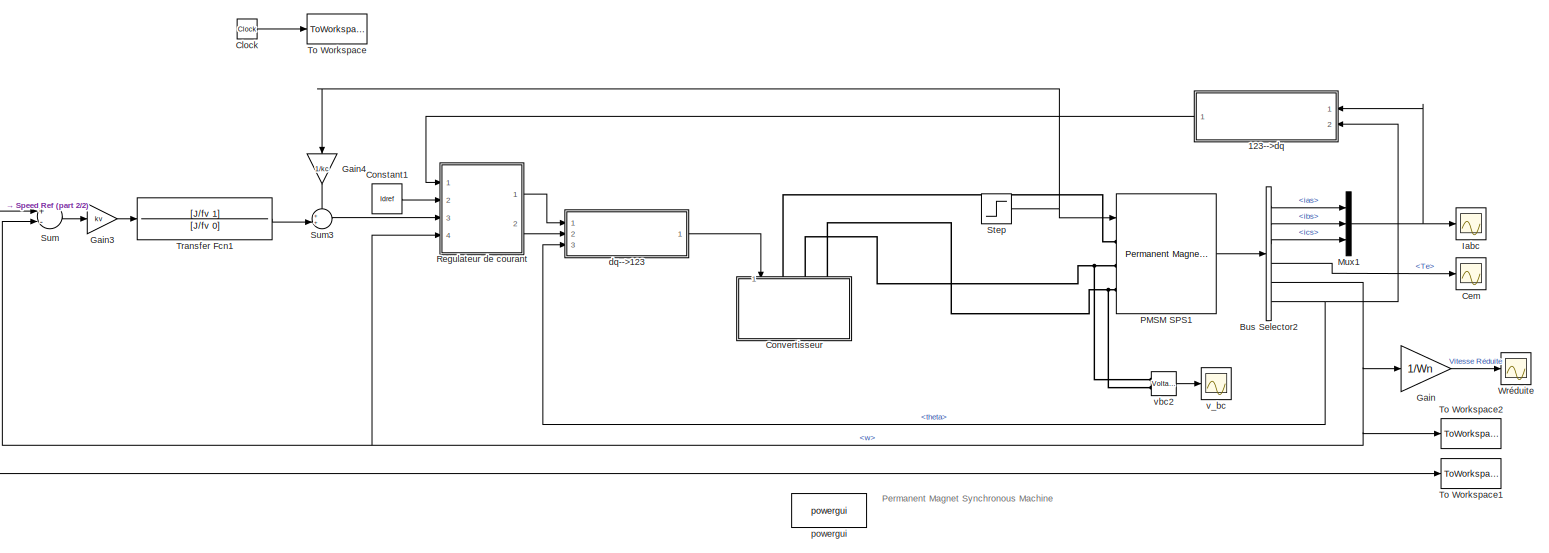
[diagram: root canvas - part 1/2, most of the canvas]
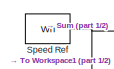
[diagram: root canvas - part 2/2, middle left region]
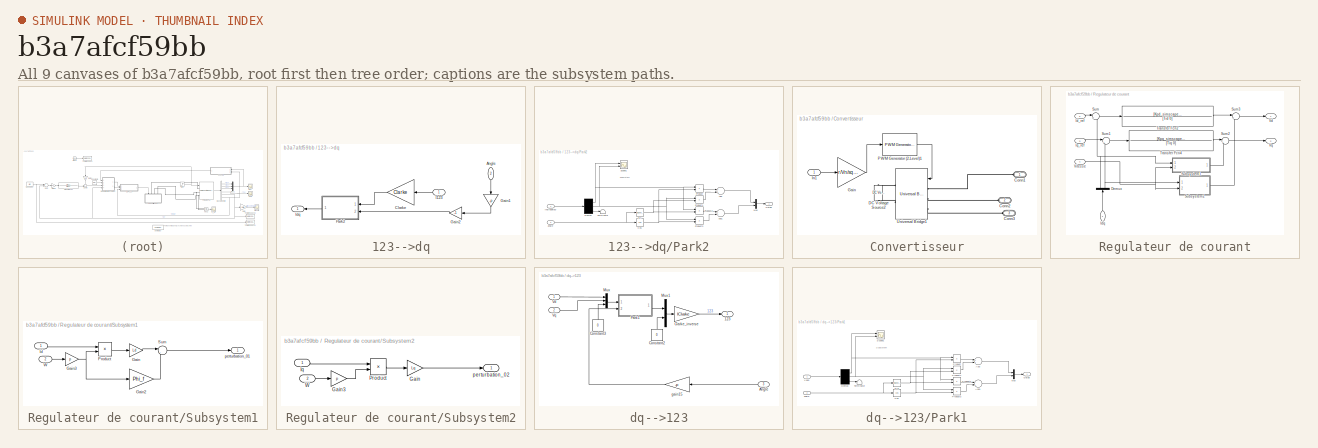
[diagram: thumbnail index - all 9 canvases of the model, root first then tree order]
MODEL slx_b3a7afcf59bb
KIND model
CONFIG AbsTol = auto
CONFIG EnableMultiTasking = off
CONFIG FixedStep = Ts
CONFIG MaxStep = auto
CONFIG MinStep = auto
CONFIG RelTol = 1e-4
CONFIG SampleTimeConstraint = Unconstrained
CONFIG Solver = ode4
CONFIG SolverName = ode4
CONFIG StartTime = 0.0
CONFIG StopTime = Tsim_all
BLOCK [SubSystem] 123-->dq
  Ports = [2, 1]
  RequestExecContextInheritance = off
BLOCK [Inport] 123-->dq/Angle
  IconDisplay = Port number
  Port = 2
BLOCK [Gain] 123-->dq/Clarke
  Gain = Clarke
  Multiplication = Matrix(K*u)
  OutDataTypeStr = Inherit: Inherit via internal rule
  ParamDataTypeStr = Inherit: Inherit via internal rule
  SaturateOnIntegerOverflow = off
BLOCK [Gain] 123-->dq/Gain1
  Gain = -p
  OutDataTypeStr = Inherit: Inherit via internal rule
  ParamDataTypeStr = Inherit: Inherit via internal rule
  SaturateOnIntegerOverflow = off
BLOCK [Gain] 123-->dq/Gain2
  Gain = -1
  OutDataTypeStr = Inherit: Inherit via internal rule
  ParamDataTypeStr = Inherit: Inherit via internal rule
  SaturateOnIntegerOverflow = off
BLOCK [Inport] 123-->dq/I123
  IconDisplay = Port number
BLOCK [Outport] 123-->dq/Idq
  IconDisplay = Port number
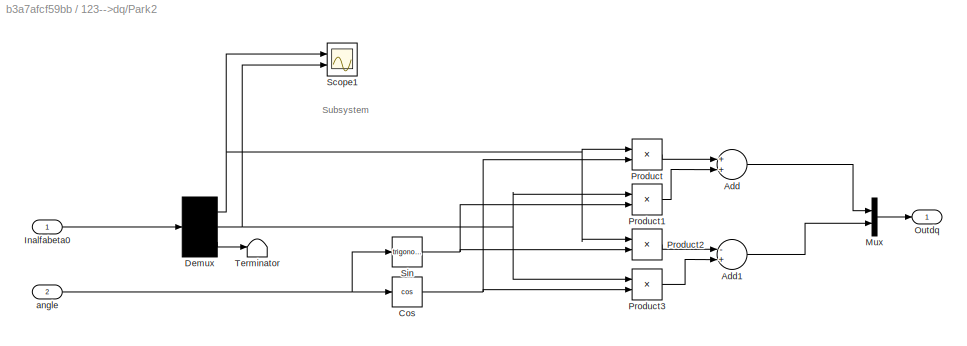
BLOCK [SubSystem] 123-->dq/Park2
  Ports = [2, 1]
  RequestExecContextInheritance = off
BLOCK [Sum] 123-->dq/Park2/Add
  InputSameDT = off
  OutDataTypeStr = Inherit: Inherit via internal rule
  Ports = [2, 1]
  SaturateOnIntegerOverflow = off
BLOCK [Sum] 123-->dq/Park2/Add1
  InputSameDT = off
  Inputs = -+
  OutDataTypeStr = Inherit: Inherit via internal rule
  Ports = [2, 1]
  SaturateOnIntegerOverflow = off
BLOCK [Trigonometry] 123-->dq/Park2/Cos
  Operator = cos
  Ports = [1, 1]
BLOCK [Demux] 123-->dq/Park2/Demux
  Outputs = 3
  Ports = [1, 3]
BLOCK [Inport] 123-->dq/Park2/Inalfabeta0
  IconDisplay = Port number
BLOCK [Mux] 123-->dq/Park2/Mux
  DisplayOption = bar
  Inputs = 2
  Ports = [2, 1]
BLOCK [Outport] 123-->dq/Park2/Outdq
  IconDisplay = Port number
BLOCK [Product] 123-->dq/Park2/Product
  InputSameDT = off
  OutDataTypeStr = Inherit: Inherit via internal rule
  Ports = [2, 1]
  RndMeth = Floor
  SaturateOnIntegerOverflow = off
BLOCK [Product] 123-->dq/Park2/Product1
  InputSameDT = off
  OutDataTypeStr = Inherit: Inherit via internal rule
  Ports = [2, 1]
  RndMeth = Floor
  SaturateOnIntegerOverflow = off
BLOCK [Product] 123-->dq/Park2/Product2
  InputSameDT = off
  OutDataTypeStr = Inherit: Inherit via internal rule
  Ports = [2, 1]
  RndMeth = Floor
  SaturateOnIntegerOverflow = off
BLOCK [Product] 123-->dq/Park2/Product3
  InputSameDT = off
  OutDataTypeStr = Inherit: Inherit via internal rule
  Ports = [2, 1]
  RndMeth = Floor
  SaturateOnIntegerOverflow = off
BLOCK [Scope] 123-->dq/Park2/Scope1
  Floating = off
  NumInputPorts = 2
  Ports = [2]
  ScopeSpecificationString = Simulink.scopes.TimeScopeBlockCfg('CurrentConfiguration', extmgr.ConfigurationSet(extmgr.Configuration('Core','General UI',true),extmgr.Configuration('Core','Source UI',true),extmgr.Configuration('Sources','WiredSimulink',true,'DataLoggingVariableName','ScopeData1'),extmgr.Configuration('Visuals','Time Domain',true,'SerializedDisplays',{struct('MinYLimReal','-1.53093','MaxYLimReal','1.53093','YLab...<+1376ch>
BLOCK [Trigonometry] 123-->dq/Park2/Sin
  Ports = [1, 1]
BLOCK [Terminator] 123-->dq/Park2/Terminator
BLOCK [Inport] 123-->dq/Park2/angle
  IconDisplay = Port number
  Port = 2
BLOCK [BusSelector] Bus Selector2
  OutputAsBus = off
  OutputSignals = ias,ibs,ics,Te,w,theta
  Ports = [1, 6]
BLOCK [Scope] Cem
  Commented = on
  Floating = off
  NumInputPorts = 1
  Ports = [1]
  ScopeSpecificationString = Simulink.scopes.TimeScopeBlockCfg('CurrentConfiguration', extmgr.ConfigurationSet(extmgr.Configuration('Core','General UI',true),extmgr.Configuration('Core','Source UI',true),extmgr.Configuration('Sources','WiredSimulink',true,'DataLoggingVariableName','ScopeData2'),extmgr.Configuration('Visuals','Time Domain',true,'SerializedDisplays',{struct('MinYLimReal','-19.64054','MaxYLimReal','176.76489','Y...<+1402ch>
BLOCK [Clock] Clock
  Commented = on
BLOCK [Constant] Constant1
  Value = Idref
BLOCK [SubSystem] Convertisseur
  Ports = [1, 0, 0, 0, 0, 3]
  RequestExecContextInheritance = off
BLOCK [PMIOPort] Convertisseur/Conn1
  Side = Left
BLOCK [PMIOPort] Convertisseur/Conn2
  Port = 2
  Side = Left
BLOCK [PMIOPort] Convertisseur/Conn3
  Port = 3
  Side = Left
BLOCK [Reference] Convertisseur/DC Voltage Source2  REF=powerlib/Electrical
Sources/DC Voltage Source
  Ports = [0, 0, 0, 0, 0, 1, 1]
  SourceBlock = powerlib/Electrical\nSources/DC Voltage Source
  SourceProductBaseCode = PS
  SourceProductName = Simscape Electrical
  SourceType = DC Voltage Source
BLOCK [Gain] Convertisseur/Gain
  Gain = r/Vn/sqrt(2)
  OutDataTypeStr = Inherit: Inherit via internal rule
  ParamDataTypeStr = Inherit: Inherit via internal rule
  SaturateOnIntegerOverflow = off
BLOCK [Inport] Convertisseur/In1
  IconDisplay = Port number
BLOCK [Reference] Convertisseur/PWM Generator (2-Level)1  REF=powerlib_meascontrol/Pulse & Signal
Generators/PWM Generator
(2-Level)
  Ports = [1, 1]
  SourceBlock = powerlib_meascontrol/Pulse & Signal\nGenerators/PWM Generator\n(2-Level)
  SourceProductBaseCode = PS
  SourceProductName = Simscape Electrical
  SourceType = PWM Generator (2-Level)
BLOCK [Reference] Convertisseur/Universal Bridge1  REF=powerlib/Power
Electronics/Universal Bridge
  Ports = [1, 0, 0, 0, 0, 3, 2]
  SourceBlock = powerlib/Power\nElectronics/Universal Bridge
  SourceProductBaseCode = PS
  SourceProductName = Simscape Electrical
  SourceType = Universal Bridge
BLOCK [Gain] Gain
  Gain = 1/Wn
  OutDataTypeStr = Inherit: Inherit via internal rule
  ParamDataTypeStr = Inherit: Inherit via internal rule
  SaturateOnIntegerOverflow = off
BLOCK [Gain] Gain3
  Gain = kv
  OutDataTypeStr = Inherit: Inherit via internal rule
  ParamDataTypeStr = Inherit: Inherit via internal rule
  SaturateOnIntegerOverflow = off
BLOCK [Gain] Gain4
  Gain = 1/kc
  OutDataTypeStr = Inherit: Inherit via internal rule
  ParamDataTypeStr = Inherit: Inherit via internal rule
  SaturateOnIntegerOverflow = off
BLOCK [Scope] Iabc
  Commented = on
  Floating = off
  NumInputPorts = 1
  Ports = [1]
  ScopeSpecificationString = Simulink.scopes.TimeScopeBlockCfg('CurrentConfiguration', extmgr.ConfigurationSet(extmgr.Configuration('Core','General UI',true),extmgr.Configuration('Core','Source UI',true),extmgr.Configuration('Sources','WiredSimulink',true,'DataLoggingVariableName','ScopeData3'),extmgr.Configuration('Visuals','Time Domain',true,'SerializedDisplays',{struct('MinYLimReal','-1.51637','MaxYLimReal','1.54017','YLab...<+1407ch>
BLOCK [Mux] Mux1
  DisplayOption = bar
  Inputs = 3
  Ports = [3, 1]
BLOCK [Reference] PMSM SPS1  REF=powerlib/Machines/Permanent Magnet
Synchronous Machine
  Ports = [1, 1, 0, 0, 0, 3]
  SourceBlock = powerlib/Machines/Permanent Magnet\nSynchronous Machine
  SourceProductBaseCode = PS
  SourceProductName = Simscape Electrical
  SourceType = Permanent Magnet Synchronous Machine
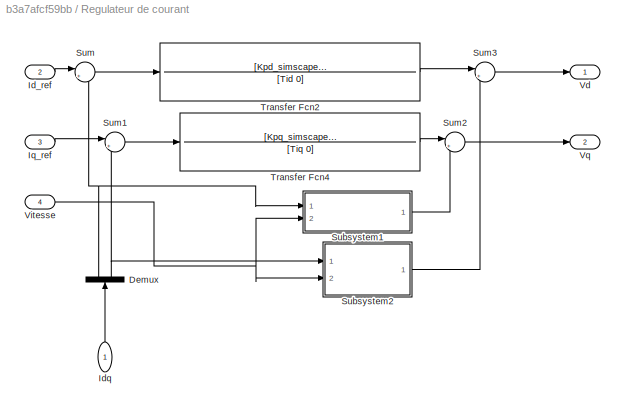
BLOCK [SubSystem] Regulateur de courant
  Ports = [4, 2]
  RequestExecContextInheritance = off
BLOCK [Demux] Regulateur de courant/Demux
  DisplayOption = bar
  Outputs = 2
  Ports = [1, 2]
BLOCK [Inport] Regulateur de courant/Id_ref
  IconDisplay = Port number
  Port = 2
BLOCK [Inport] Regulateur de courant/Idq
  IconDisplay = Port number
BLOCK [Inport] Regulateur de courant/Iq_ref
  IconDisplay = Port number
  Port = 3
BLOCK [SubSystem] Regulateur de courant/Subsystem1
  Ports = [2, 1]
  RequestExecContextInheritance = off
BLOCK [Gain] Regulateur de courant/Subsystem1/Gain
  Gain = Ld
  OutDataTypeStr = Inherit: Inherit via internal rule
  ParamDataTypeStr = Inherit: Inherit via internal rule
  SaturateOnIntegerOverflow = off
BLOCK [Gain] Regulateur de courant/Subsystem1/Gain2
  Gain = Phi_f
  OutDataTypeStr = Inherit: Inherit via internal rule
  ParamDataTypeStr = Inherit: Inherit via internal rule
  SaturateOnIntegerOverflow = off
BLOCK [Gain] Regulateur de courant/Subsystem1/Gain3
  Gain = p
  OutDataTypeStr = Inherit: Inherit via internal rule
  ParamDataTypeStr = Inherit: Inherit via internal rule
  SaturateOnIntegerOverflow = off
BLOCK [Inport] Regulateur de courant/Subsystem1/Id
  IconDisplay = Port number
BLOCK [Product] Regulateur de courant/Subsystem1/Product
  InputSameDT = off
  OutDataTypeStr = Inherit: Inherit via internal rule
  Ports = [2, 1]
  RndMeth = Floor
  SaturateOnIntegerOverflow = off
BLOCK [Sum] Regulateur de courant/Subsystem1/Sum
  IconShape = round
  InputSameDT = off
  Inputs = |--
  OutDataTypeStr = Inherit: Inherit via internal rule
  Ports = [2, 1]
  SaturateOnIntegerOverflow = off
BLOCK [Inport] Regulateur de courant/Subsystem1/W
  IconDisplay = Port number
  Port = 2
BLOCK [Outport] Regulateur de courant/Subsystem1/perturbation_01
  IconDisplay = Port number
BLOCK [SubSystem] Regulateur de courant/Subsystem2
  Ports = [2, 1]
  RequestExecContextInheritance = off
BLOCK [Gain] Regulateur de courant/Subsystem2/Gain
  Gain = Lq
  OutDataTypeStr = Inherit: Inherit via internal rule
  ParamDataTypeStr = Inherit: Inherit via internal rule
  SaturateOnIntegerOverflow = off
BLOCK [Gain] Regulateur de courant/Subsystem2/Gain3
  Gain = p
  OutDataTypeStr = Inherit: Inherit via internal rule
  ParamDataTypeStr = Inherit: Inherit via internal rule
  SaturateOnIntegerOverflow = off
BLOCK [Inport] Regulateur de courant/Subsystem2/Iq
  IconDisplay = Port number
BLOCK [Product] Regulateur de courant/Subsystem2/Product
  InputSameDT = off
  OutDataTypeStr = Inherit: Inherit via internal rule
  Ports = [2, 1]
  RndMeth = Floor
  SaturateOnIntegerOverflow = off
BLOCK [Inport] Regulateur de courant/Subsystem2/W
  IconDisplay = Port number
  Port = 2
BLOCK [Outport] Regulateur de courant/Subsystem2/perturbation_02
  IconDisplay = Port number
BLOCK [Sum] Regulateur de courant/Sum
  IconShape = round
  InputSameDT = off
  Inputs = |+-
  OutDataTypeStr = Inherit: Inherit via internal rule
  Ports = [2, 1]
  SaturateOnIntegerOverflow = off
BLOCK [Sum] Regulateur de courant/Sum1
  IconShape = round
  InputSameDT = off
  Inputs = |+-
  OutDataTypeStr = Inherit: Inherit via internal rule
  Ports = [2, 1]
  SaturateOnIntegerOverflow = off
BLOCK [Sum] Regulateur de courant/Sum2
  IconShape = round
  InputSameDT = off
  Inputs = |+-
  OutDataTypeStr = Inherit: Inherit via internal rule
  Ports = [2, 1]
  SaturateOnIntegerOverflow = off
BLOCK [Sum] Regulateur de courant/Sum3
  IconShape = round
  InputSameDT = off
  Inputs = |+-
  OutDataTypeStr = Inherit: Inherit via internal rule
  Ports = [2, 1]
  SaturateOnIntegerOverflow = off
BLOCK [TransferFcn] Regulateur de courant/Transfer Fcn2
  Denominator = [Tid 0]
  Numerator = [Kpd_simscape*Tid Kpd_simscape]
BLOCK [TransferFcn] Regulateur de courant/Transfer Fcn4
  Denominator = [Tiq 0]
  Numerator = [Kpq_simscape*Tiq Kpq_simscape]
BLOCK [Outport] Regulateur de courant/Vd
  IconDisplay = Port number
BLOCK [Inport] Regulateur de courant/Vitesse
  IconDisplay = Port number
  Port = 4
BLOCK [Outport] Regulateur de courant/Vq
  IconDisplay = Port number
  Port = 2
BLOCK [Constant] Speed Ref
  Value = Wn
BLOCK [Step] Step
  After = Cn
  SampleTime = 0
  Time = delay_torque
BLOCK [Sum] Sum
  Inputs = +-
  Ports = [2, 1]
BLOCK [Sum] Sum3
  IconShape = round
  InputSameDT = off
  Inputs = ++|
  OutDataTypeStr = Inherit: Inherit via internal rule
  Ports = [2, 1]
  SaturateOnIntegerOverflow = off
BLOCK [ToWorkspace] To Workspace
  Commented = on
  FixptAsFi = on
  MaxDataPoints = inf
  Ports = [1]
  SampleTime = -1
  Save2DSignal = 3-D array (concatenate along third dimension)
  VariableName = t
BLOCK [ToWorkspace] To Workspace1
  Commented = on
  FixptAsFi = on
  MaxDataPoints = inf
  Ports = [1]
  SampleTime = -1
  Save2DSignal = 3-D array (concatenate along third dimension)
  VariableName = Vitesse_ref
BLOCK [ToWorkspace] To Workspace2
  Commented = on
  FixptAsFi = on
  MaxDataPoints = inf
  Ports = [1]
  SampleTime = -1
  Save2DSignal = 3-D array (concatenate along third dimension)
  VariableName = Vitesse
BLOCK [TransferFcn] Transfer Fcn1
  Denominator = [J/fv 0]
  Numerator = [J/fv 1]
BLOCK [Scope] Wréduite
  Floating = off
  NumInputPorts = 1
  Ports = [1]
  ScopeSpecificationString = Simulink.scopes.TimeScopeBlockCfg('CurrentConfiguration', extmgr.ConfigurationSet(extmgr.Configuration('Core','General UI',true),extmgr.Configuration('Core','Source UI',true),extmgr.Configuration('Sources','WiredSimulink',true,'DataLoggingVariableName','ScopeData1'),extmgr.Configuration('Visuals','Time Domain',true,'SerializedDisplays',{struct('MinYLimReal','-0.1206','MaxYLimReal','1.08542','YLabe...<+1432ch>
BLOCK [SubSystem] dq-->123
  Ports = [3, 1]
  RequestExecContextInheritance = off
BLOCK [Outport] dq-->123/123
  IconDisplay = Port number
BLOCK [Inport] dq-->123/Angle
  IconDisplay = Port number
  Port = 3
BLOCK [Gain] dq-->123/Clarke_inverse
  Gain = IClarke
  Multiplication = Matrix(K*u)
  OutDataTypeStr = Inherit: Inherit via internal rule
  ParamDataTypeStr = Inherit: Inherit via internal rule
  SaturateOnIntegerOverflow = off
BLOCK [Constant] dq-->123/Constant2
  Value = 0
BLOCK [Constant] dq-->123/Constant3
  Value = 0
BLOCK [Mux] dq-->123/Mux
  DisplayOption = bar
  Inputs = 3
  Ports = [3, 1]
BLOCK [Mux] dq-->123/Mux1
  DisplayOption = bar
  Inputs = 2
  Ports = [2, 1]
BLOCK [SubSystem] dq-->123/Park1
  Ports = [2, 1]
  RequestExecContextInheritance = off
BLOCK [Sum] dq-->123/Park1/Add
  InputSameDT = off
  OutDataTypeStr = Inherit: Inherit via internal rule
  Ports = [2, 1]
  SaturateOnIntegerOverflow = off
BLOCK [Sum] dq-->123/Park1/Add1
  InputSameDT = off
  Inputs = -+
  OutDataTypeStr = Inherit: Inherit via internal rule
  Ports = [2, 1]
  SaturateOnIntegerOverflow = off
BLOCK [Trigonometry] dq-->123/Park1/Cos
  Operator = cos
  Ports = [1, 1]
BLOCK [Demux] dq-->123/Park1/Demux
  Outputs = 3
  Ports = [1, 3]
BLOCK [Mux] dq-->123/Park1/Mux
  DisplayOption = bar
  Inputs = 2
  Ports = [2, 1]
BLOCK [Outport] dq-->123/Park1/Outab
  IconDisplay = Port number
BLOCK [Product] dq-->123/Park1/Product
  InputSameDT = off
  OutDataTypeStr = Inherit: Inherit via internal rule
  Ports = [2, 1]
  RndMeth = Floor
  SaturateOnIntegerOverflow = off
BLOCK [Product] dq-->123/Park1/Product1
  InputSameDT = off
  OutDataTypeStr = Inherit: Inherit via internal rule
  Ports = [2, 1]
  RndMeth = Floor
  SaturateOnIntegerOverflow = off
BLOCK [Product] dq-->123/Park1/Product2
  InputSameDT = off
  OutDataTypeStr = Inherit: Inherit via internal rule
  Ports = [2, 1]
  RndMeth = Floor
  SaturateOnIntegerOverflow = off
BLOCK [Product] dq-->123/Park1/Product3
  InputSameDT = off
  OutDataTypeStr = Inherit: Inherit via internal rule
  Ports = [2, 1]
  RndMeth = Floor
  SaturateOnIntegerOverflow = off
BLOCK [Scope] dq-->123/Park1/Scope1
  Floating = off
  NumInputPorts = 2
  Ports = [2]
  ScopeSpecificationString = Simulink.scopes.TimeScopeBlockCfg('CurrentConfiguration', extmgr.ConfigurationSet(extmgr.Configuration('Core','General UI',true),extmgr.Configuration('Core','Source UI',true),extmgr.Configuration('Sources','WiredSimulink',true,'DataLoggingVariableName','ScopeData1'),extmgr.Configuration('Visuals','Time Domain',true,'SerializedDisplays',{struct('MinYLimReal','-1.53093','MaxYLimReal','1.53093','YLab...<+1376ch>
BLOCK [Trigonometry] dq-->123/Park1/Sin
  Ports = [1, 1]
BLOCK [Terminator] dq-->123/Park1/Terminator
BLOCK [Inport] dq-->123/Park1/Vdq0
  IconDisplay = Port number
BLOCK [Inport] dq-->123/Park1/angle
  IconDisplay = Port number
  Port = 2
BLOCK [Inport] dq-->123/Vd
  IconDisplay = Port number
BLOCK [Inport] dq-->123/Vq
  IconDisplay = Port number
  Port = 2
BLOCK [Gain] dq-->123/gain15
  Gain = -p
  OutDataTypeStr = Inherit: Inherit via internal rule
  ParamDataTypeStr = Inherit: Inherit via internal rule
  SaturateOnIntegerOverflow = off
BLOCK [Reference] powergui  REF=powerlib/powergui
  Ports = []
  SourceBlock = powerlib/powergui
  SourceProductBaseCode = PS
  SourceProductName = Simscape Power Systems
  SourceType = PSB option menu block
BLOCK [Scope] v_bc
  Commented = on
  Floating = off
  NumInputPorts = 1
  Ports = [1]
  ScopeSpecificationString = Simulink.scopes.TimeScopeBlockCfg('CurrentConfiguration', extmgr.ConfigurationSet(extmgr.Configuration('Core','General UI',true),extmgr.Configuration('Core','Source UI',true),extmgr.Configuration('Sources','WiredSimulink',true,'DataLoggingVariableName','ScopeData4'),extmgr.Configuration('Visuals','Time Domain',true,'SerializedDisplays',{struct('MinYLimReal','-19.64054','MaxYLimReal','176.76489','Y...<+1402ch>
BLOCK [Reference] vbc2  REF=powerlib/Measurements/Voltage Measurement
  AttributesFormatString = \n
  Commented = on
  Ports = [0, 1, 0, 0, 0, 2]
  SourceBlock = powerlib/Measurements/Voltage Measurement
  SourceProductBaseCode = PS
  SourceProductName = Simscape Electrical
  SourceType = Voltage Measurement
  Tag = PoWeRsYsTeMmEaSuReMeNt
ANNOTATION (root): Permanent Magnet Synchronous Machine
ANNOTATION 123-->dq/Park2: Subsystem
ANNOTATION dq-->123/Park1: Subsystem
LINE 123-->dq/Angle:1 -> 123-->dq/Gain1:1
LINE 123-->dq/Clarke:1 -> 123-->dq/Park2:1
LINE 123-->dq/Gain1:1 -> 123-->dq/Gain2:1
LINE 123-->dq/Gain2:1 -> 123-->dq/Park2:2
LINE 123-->dq/I123:1 -> 123-->dq/Clarke:1
LINE 123-->dq/Park2/Add1:1 -> 123-->dq/Park2/Mux:2
LINE 123-->dq/Park2/Add:1 -> 123-->dq/Park2/Mux:1
NET 123-->dq/Park2/Cos:1 -> 123-->dq/Park2/Product3:2, 123-->dq/Park2/Product:2
NET 123-->dq/Park2/Demux:1 -> 123-->dq/Park2/Product2:1, 123-->dq/Park2/Product:1, 123-->dq/Park2/Scope1:1
NET 123-->dq/Park2/Demux:2 -> 123-->dq/Park2/Product1:1, 123-->dq/Park2/Product3:1, 123-->dq/Park2/Scope1:2
LINE 123-->dq/Park2/Demux:3 -> 123-->dq/Park2/Terminator:1
LINE 123-->dq/Park2/Inalfabeta0:1 -> 123-->dq/Park2/Demux:1
LINE 123-->dq/Park2/Mux:1 -> 123-->dq/Park2/Outdq:1
LINE 123-->dq/Park2/Product1:1 -> 123-->dq/Park2/Add:2
LINE 123-->dq/Park2/Product2:1 -> 123-->dq/Park2/Add1:1
LINE 123-->dq/Park2/Product3:1 -> 123-->dq/Park2/Add1:2
LINE 123-->dq/Park2/Product:1 -> 123-->dq/Park2/Add:1
NET 123-->dq/Park2/Sin:1 -> 123-->dq/Park2/Product1:2, 123-->dq/Park2/Product2:2
NET 123-->dq/Park2/angle:1 -> 123-->dq/Park2/Cos:1, 123-->dq/Park2/Sin:1
LINE 123-->dq/Park2:1 -> 123-->dq/Idq:1
LINE 123-->dq:1 -> Regulateur de courant:1
LINE Bus Selector2:1 -> Mux1:1
LINE Bus Selector2:2 -> Mux1:2
LINE Bus Selector2:3 -> Mux1:3
LINE Bus Selector2:4 -> Cem:1
NET Bus Selector2:5 -> Gain:1, Regulateur de courant:4, Sum:2, To Workspace2:1
NET Bus Selector2:6 -> 123-->dq:2, dq-->123:3
LINE Clock:1 -> To Workspace:1
LINE Constant1:1 -> Regulateur de courant:2
LINE Convertisseur/Gain:1 -> Convertisseur/PWM Generator (2-Level)1:1
LINE Convertisseur/In1:1 -> Convertisseur/Gain:1
LINE Convertisseur/PWM Generator (2-Level)1:1 -> Convertisseur/Universal Bridge1:1
LINE Gain3:1 -> Transfer Fcn1:1
LINE Gain4:1 -> Sum3:1
LINE Gain:1 -> Wréduite:1
NET Mux1:1 -> 123-->dq:1, Iabc:1
LINE PMSM SPS1:1 -> Bus Selector2:1
NET Regulateur de courant/Demux:1 -> Regulateur de courant/Subsystem1:1, Regulateur de courant/Sum:2
NET Regulateur de courant/Demux:2 -> Regulateur de courant/Subsystem2:1, Regulateur de courant/Sum1:2
LINE Regulateur de courant/Id_ref:1 -> Regulateur de courant/Sum:1
LINE Regulateur de courant/Idq:1 -> Regulateur de courant/Demux:1
LINE Regulateur de courant/Iq_ref:1 -> Regulateur de courant/Sum1:1
LINE Regulateur de courant/Subsystem1/Gain2:1 -> Regulateur de courant/Subsystem1/Sum:2
NET Regulateur de courant/Subsystem1/Gain3:1 -> Regulateur de courant/Subsystem1/Gain2:1, Regulateur de courant/Subsystem1/Product:2
LINE Regulateur de courant/Subsystem1/Gain:1 -> Regulateur de courant/Subsystem1/Sum:1
LINE Regulateur de courant/Subsystem1/Id:1 -> Regulateur de courant/Subsystem1/Product:1
LINE Regulateur de courant/Subsystem1/Product:1 -> Regulateur de courant/Subsystem1/Gain:1
LINE Regulateur de courant/Subsystem1/Sum:1 -> Regulateur de courant/Subsystem1/perturbation_01:1
LINE Regulateur de courant/Subsystem1/W:1 -> Regulateur de courant/Subsystem1/Gain3:1
LINE Regulateur de courant/Subsystem1:1 -> Regulateur de courant/Sum2:2
LINE Regulateur de courant/Subsystem2/Gain3:1 -> Regulateur de courant/Subsystem2/Product:2
LINE Regulateur de courant/Subsystem2/Gain:1 -> Regulateur de courant/Subsystem2/perturbation_02:1
LINE Regulateur de courant/Subsystem2/Iq:1 -> Regulateur de courant/Subsystem2/Product:1
LINE Regulateur de courant/Subsystem2/Product:1 -> Regulateur de courant/Subsystem2/Gain:1
LINE Regulateur de courant/Subsystem2/W:1 -> Regulateur de courant/Subsystem2/Gain3:1
LINE Regulateur de courant/Subsystem2:1 -> Regulateur de courant/Sum3:2
LINE Regulateur de courant/Sum1:1 -> Regulateur de courant/Transfer Fcn4:1
LINE Regulateur de courant/Sum2:1 -> Regulateur de courant/Vq:1
LINE Regulateur de courant/Sum3:1 -> Regulateur de courant/Vd:1
LINE Regulateur de courant/Sum:1 -> Regulateur de courant/Transfer Fcn2:1
LINE Regulateur de courant/Transfer Fcn2:1 -> Regulateur de courant/Sum3:1
LINE Regulateur de courant/Transfer Fcn4:1 -> Regulateur de courant/Sum2:1
NET Regulateur de courant/Vitesse:1 -> Regulateur de courant/Subsystem1:2, Regulateur de courant/Subsystem2:2
LINE Regulateur de courant:1 -> dq-->123:1
LINE Regulateur de courant:2 -> dq-->123:2
NET Speed Ref:1 -> Sum:1, To Workspace1:1
NET Step:1 -> Gain4:1, PMSM SPS1:1
LINE Sum3:1 -> Regulateur de courant:3
LINE Sum:1 -> Gain3:1
LINE Transfer Fcn1:1 -> Sum3:2
LINE dq-->123/Angle:1 -> dq-->123/gain15:1
LINE dq-->123/Clarke_inverse:1 -> dq-->123/123:1
LINE dq-->123/Constant2:1 -> dq-->123/Mux1:2
LINE dq-->123/Constant3:1 -> dq-->123/Mux:3
LINE dq-->123/Mux1:1 -> dq-->123/Clarke_inverse:1
LINE dq-->123/Mux:1 -> dq-->123/Park1:1
LINE dq-->123/Park1/Add1:1 -> dq-->123/Park1/Mux:2
LINE dq-->123/Park1/Add:1 -> dq-->123/Park1/Mux:1
NET dq-->123/Park1/Cos:1 -> dq-->123/Park1/Product3:2, dq-->123/Park1/Product:2
NET dq-->123/Park1/Demux:1 -> dq-->123/Park1/Product2:1, dq-->123/Park1/Product:1, dq-->123/Park1/Scope1:1
NET dq-->123/Park1/Demux:2 -> dq-->123/Park1/Product1:1, dq-->123/Park1/Product3:1, dq-->123/Park1/Scope1:2
LINE dq-->123/Park1/Demux:3 -> dq-->123/Park1/Terminator:1
LINE dq-->123/Park1/Mux:1 -> dq-->123/Park1/Outab:1
LINE dq-->123/Park1/Product1:1 -> dq-->123/Park1/Add:2
LINE dq-->123/Park1/Product2:1 -> dq-->123/Park1/Add1:1
LINE dq-->123/Park1/Product3:1 -> dq-->123/Park1/Add1:2
LINE dq-->123/Park1/Product:1 -> dq-->123/Park1/Add:1
NET dq-->123/Park1/Sin:1 -> dq-->123/Park1/Product1:2, dq-->123/Park1/Product2:2
LINE dq-->123/Park1/Vdq0:1 -> dq-->123/Park1/Demux:1
NET dq-->123/Park1/angle:1 -> dq-->123/Park1/Cos:1, dq-->123/Park1/Sin:1
LINE dq-->123/Park1:1 -> dq-->123/Mux1:1
LINE dq-->123/Vd:1 -> dq-->123/Mux:1
LINE dq-->123/Vq:1 -> dq-->123/Mux:2
LINE dq-->123/gain15:1 -> dq-->123/Park1:2
LINE dq-->123:1 -> Convertisseur:1
LINE vbc2:1 -> v_bc:1
PLINE Convertisseur/Conn1:RConn1 -- Convertisseur/Universal Bridge1:LConn1
PLINE Convertisseur/Conn2:RConn1 -- Convertisseur/Universal Bridge1:LConn2
PLINE Convertisseur/Conn3:RConn1 -- Convertisseur/Universal Bridge1:LConn3
PLINE Convertisseur/DC Voltage Source2:LConn1 -- Convertisseur/Universal Bridge1:RConn2
PLINE Convertisseur/DC Voltage Source2:RConn1 -- Convertisseur/Universal Bridge1:RConn1
PLINE Convertisseur:LConn1 -- PMSM SPS1:LConn1
PNET net1: Convertisseur:LConn2 -- PMSM SPS1:LConn2 -- vbc2:LConn1
PNET net2: Convertisseur:LConn3 -- PMSM SPS1:LConn3 -- vbc2:LConn2
note: NET lines group one-source signal fan-out (src -> all destinations, sorted); 1:1 wires keep LINE; PNET lines group multi-terminal physical nets as a canonical sorted terminal list (undirected conserving connections); 2-terminal nets keep the pairwise PLINE form
